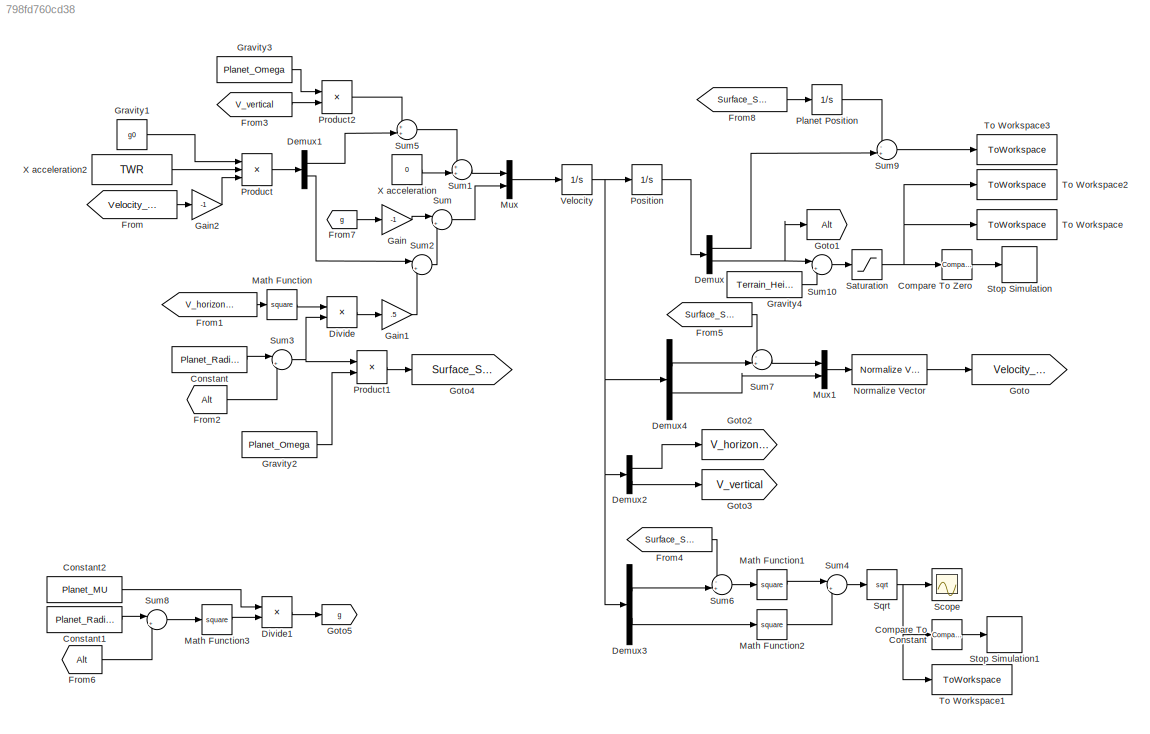
MODEL slx_798fd760cd38
KIND model
CONFIG AbsTol = auto
CONFIG FixedStep = .5
CONFIG MaxStep = auto
CONFIG MinStep = auto
CONFIG RelTol = 1e-5
CONFIG SampleTimeConstraint = Unconstrained
CONFIG Solver = ode45
CONFIG SolverMode = Auto
CONFIG SolverName = ode45
CONFIG StartTime = 0.0
CONFIG StopTime = 10000
BLOCK [Reference] Compare To Constant  REF=simulink/Logic and Bit
Operations/Compare
To Constant
  OutDataTypeStr = boolean
  Ports = [1, 1]
  SourceBlock = simulink/Logic and Bit\nOperations/Compare\nTo Constant
  SourceType = Compare To Constant
  ZeroCross = on
  const = 5
  relop = <=
BLOCK [Reference] Compare To Zero  REF=simulink/Logic and Bit
Operations/Compare
To Zero
  OutDataTypeStr = boolean
  Ports = [1, 1]
  SourceBlock = simulink/Logic and Bit\nOperations/Compare\nTo Zero
  SourceType = Compare To Zero
  ZeroCross = on
  relop = <=
BLOCK [Constant] Constant
  Value = Planet_Radius
BLOCK [Constant] Constant1
  Value = Planet_Radius
BLOCK [Constant] Constant2
  Value = Planet_MU
BLOCK [Demux] Demux
  DisplayOption = bar
  Outputs = 2
  Ports = [1, 2]
BLOCK [Demux] Demux1
  DisplayOption = bar
  Outputs = 2
  Ports = [1, 2]
BLOCK [Demux] Demux2
  DisplayOption = bar
  Outputs = 2
  Ports = [1, 2]
BLOCK [Demux] Demux3
  DisplayOption = bar
  Outputs = 2
  Ports = [1, 2]
BLOCK [Demux] Demux4
  DisplayOption = bar
  Outputs = 2
  Ports = [1, 2]
BLOCK [Product] Divide
  InputSameDT = off
  Inputs = */
  OutDataTypeStr = Inherit: Inherit via internal rule
  Ports = [2, 1]
  RndMeth = Floor
  SaturateOnIntegerOverflow = off
BLOCK [Product] Divide1
  InputSameDT = off
  Inputs = */
  OutDataTypeStr = Inherit: Inherit via internal rule
  Ports = [2, 1]
  RndMeth = Floor
  SaturateOnIntegerOverflow = off
BLOCK [From] From
  GotoTag = Velocity_Vector
BLOCK [From] From1
  GotoTag = V_horizontal
BLOCK [From] From2
  GotoTag = Alt
BLOCK [From] From3
  GotoTag = V_vertical
BLOCK [From] From4
  GotoTag = Surface_Speed
BLOCK [From] From5
  GotoTag = Surface_Speed
BLOCK [From] From6
  GotoTag = Alt
BLOCK [From] From7
  GotoTag = g
BLOCK [From] From8
  GotoTag = Surface_Speed
BLOCK [Gain] Gain
  Gain = -1
  OutDataTypeStr = Inherit: Inherit via internal rule
  ParamDataTypeStr = Inherit: Inherit via internal rule
  SaturateOnIntegerOverflow = off
BLOCK [Gain] Gain1
  Gain = .5
  OutDataTypeStr = Inherit: Inherit via internal rule
  ParamDataTypeStr = Inherit: Inherit via internal rule
  SaturateOnIntegerOverflow = off
BLOCK [Gain] Gain2
  Gain = -1
  OutDataTypeStr = Inherit: Inherit via internal rule
  ParamDataTypeStr = Inherit: Inherit via internal rule
  SaturateOnIntegerOverflow = off
BLOCK [Goto] Goto
  GotoTag = Velocity_Vector
BLOCK [Goto] Goto1
  GotoTag = Alt
BLOCK [Goto] Goto2
  GotoTag = V_horizontal
BLOCK [Goto] Goto3
  GotoTag = V_vertical
BLOCK [Goto] Goto4
  GotoTag = Surface_Speed
BLOCK [Goto] Goto5
  GotoTag = g
BLOCK [Constant] Gravity1
  Value = g0
BLOCK [Constant] Gravity2
  Value = Planet_Omega
BLOCK [Constant] Gravity3
  Value = Planet_Omega
BLOCK [Constant] Gravity4
  Value = Terrain_Height
BLOCK [Math] Math Function
  Operator = square
  Ports = [1, 1]
BLOCK [Math] Math Function1
  Operator = square
  Ports = [1, 1]
BLOCK [Math] Math Function2
  Operator = square
  Ports = [1, 1]
BLOCK [Math] Math Function3
  Operator = square
  Ports = [1, 1]
BLOCK [Mux] Mux
  DisplayOption = bar
  Inputs = 2
  Ports = [2, 1]
BLOCK [Mux] Mux1
  DisplayOption = bar
  Inputs = 2
  Ports = [2, 1]
BLOCK [Reference] Normalize Vector  REF=vrlib/Utilities/Normalize Vector
  Ports = [1, 1]
  SourceBlock = vrlib/Utilities/Normalize Vector
  SourceType = Normalize Vector
  maxzero = 0
BLOCK [Integrator] Planet Position
  Ports = [1, 1]
BLOCK [Integrator] Position
  InitialCondition = [0,Starting_Alt+Terrain_Height]
  Ports = [1, 1]
BLOCK [Product] Product
  InputSameDT = off
  Inputs = 3
  OutDataTypeStr = Inherit: Inherit via internal rule
  Ports = [3, 1]
  RndMeth = Floor
  SaturateOnIntegerOverflow = off
BLOCK [Product] Product1
  InputSameDT = off
  OutDataTypeStr = Inherit: Inherit via internal rule
  Ports = [2, 1]
  RndMeth = Floor
  SaturateOnIntegerOverflow = off
BLOCK [Product] Product2
  InputSameDT = off
  OutDataTypeStr = Inherit: Inherit via internal rule
  Ports = [2, 1]
  RndMeth = Floor
  SaturateOnIntegerOverflow = off
BLOCK [Saturate] Saturation
  InputPortMap = u0
  LowerLimit = 0
  Ports = [1, 1]
  UpperLimit = inf
BLOCK [Scope] Scope
  Floating = off
  NumInputPorts = 1
  Ports = [1]
  YMax = 9.96725e-07
  YMin = 9.96725e-07
BLOCK [Sqrt] Sqrt
BLOCK [Stop] Stop Simulation
BLOCK [Stop] Stop Simulation1
BLOCK [Sum] Sum
  IconShape = round
  InputSameDT = off
  Inputs = |++
  OutDataTypeStr = Inherit: Inherit via internal rule
  Ports = [2, 1]
  SaturateOnIntegerOverflow = off
BLOCK [Sum] Sum1
  IconShape = round
  InputSameDT = off
  Inputs = ++|
  OutDataTypeStr = Inherit: Inherit via internal rule
  Ports = [2, 1]
  SaturateOnIntegerOverflow = off
BLOCK [Sum] Sum10
  IconShape = round
  InputSameDT = off
  Inputs = |+-
  OutDataTypeStr = Inherit: Inherit via internal rule
  Ports = [2, 1]
  SaturateOnIntegerOverflow = off
BLOCK [Sum] Sum2
  IconShape = round
  InputSameDT = off
  Inputs = |++
  OutDataTypeStr = Inherit: Inherit via internal rule
  Ports = [2, 1]
  SaturateOnIntegerOverflow = off
BLOCK [Sum] Sum3
  IconShape = round
  InputSameDT = off
  Inputs = |++
  OutDataTypeStr = Inherit: Inherit via internal rule
  Ports = [2, 1]
  SaturateOnIntegerOverflow = off
BLOCK [Sum] Sum4
  IconShape = round
  InputSameDT = off
  Inputs = |++
  OutDataTypeStr = Inherit: Inherit via internal rule
  Ports = [2, 1]
  SaturateOnIntegerOverflow = off
BLOCK [Sum] Sum5
  IconShape = round
  InputSameDT = off
  Inputs = ++|
  OutDataTypeStr = Inherit: Inherit via internal rule
  Ports = [2, 1]
  SaturateOnIntegerOverflow = off
BLOCK [Sum] Sum6
  IconShape = round
  InputSameDT = off
  Inputs = -+|
  OutDataTypeStr = Inherit: Inherit via internal rule
  Ports = [2, 1]
  SaturateOnIntegerOverflow = off
BLOCK [Sum] Sum7
  IconShape = round
  InputSameDT = off
  Inputs = -+|
  OutDataTypeStr = Inherit: Inherit via internal rule
  Ports = [2, 1]
  SaturateOnIntegerOverflow = off
BLOCK [Sum] Sum8
  IconShape = round
  InputSameDT = off
  Inputs = |++
  OutDataTypeStr = Inherit: Inherit via internal rule
  Ports = [2, 1]
  SaturateOnIntegerOverflow = off
BLOCK [Sum] Sum9
  IconShape = round
  InputSameDT = off
  Inputs = -+|
  OutDataTypeStr = Inherit: Inherit via internal rule
  Ports = [2, 1]
  SaturateOnIntegerOverflow = off
BLOCK [ToWorkspace] To Workspace
  FixptAsFi = on
  MaxDataPoints = 1
  Ports = [1]
  SampleTime = -1
  Save2DSignal = 3-D array (concatenate along third dimension)
  VariableName = Final_Altitude
BLOCK [ToWorkspace] To Workspace1
  FixptAsFi = on
  MaxDataPoints = 1
  Ports = [1]
  SampleTime = -1
  Save2DSignal = 3-D array (concatenate along third dimension)
  VariableName = Final_Speed
BLOCK [ToWorkspace] To Workspace2
  FixptAsFi = on
  Ports = [1]
  SampleTime = -1
  Save2DSignal = 3-D array (concatenate along third dimension)
  VariableName = Y
BLOCK [ToWorkspace] To Workspace3
  FixptAsFi = on
  Ports = [1]
  SampleTime = -1
  Save2DSignal = 3-D array (concatenate along third dimension)
  VariableName = X
BLOCK [Integrator] Velocity
  InitialCondition = [Starting_X_Speed,Starting_Y_Speed]
  Ports = [1, 1]
BLOCK [Constant] X acceleration
  Value = 0
BLOCK [Constant] X acceleration2
  Value = TWR
LINE Compare To Constant:1 -> Stop Simulation1:1
LINE Compare To Zero:1 -> Stop Simulation:1
LINE Constant1:1 -> Sum8:1
LINE Constant2:1 -> Divide1:1
LINE Constant:1 -> Sum3:1
LINE Demux1:1 -> Sum5:2
LINE Demux1:2 -> Sum2:1
LINE Demux2:1 -> Goto2:1
LINE Demux2:2 -> Goto3:1
LINE Demux3:1 -> Sum6:2
LINE Demux3:2 -> Math Function2:1
LINE Demux4:1 -> Sum7:2
LINE Demux4:2 -> Mux1:2
LINE Demux:1 -> Sum9:2
NET Demux:2 -> Goto1:1, Sum10:1
LINE Divide1:1 -> Goto5:1
LINE Divide:1 -> Gain1:1
LINE From1:1 -> Math Function:1
LINE From2:1 -> Sum3:2
LINE From3:1 -> Product2:2
LINE From4:1 -> Sum6:1
LINE From5:1 -> Sum7:1
LINE From6:1 -> Sum8:2
LINE From7:1 -> Gain:1
LINE From8:1 -> Planet Position:1
LINE From:1 -> Gain2:1
LINE Gain1:1 -> Sum2:2
LINE Gain2:1 -> Product:3
LINE Gain:1 -> Sum:1
LINE Gravity1:1 -> Product:1
LINE Gravity2:1 -> Product1:2
LINE Gravity3:1 -> Product2:1
LINE Gravity4:1 -> Sum10:2
LINE Math Function1:1 -> Sum4:1
LINE Math Function2:1 -> Sum4:2
LINE Math Function3:1 -> Divide1:2
LINE Math Function:1 -> Divide:1
LINE Mux1:1 -> Normalize Vector:1
LINE Mux:1 -> Velocity:1
LINE Normalize Vector:1 -> Goto:1
LINE Planet Position:1 -> Sum9:1
LINE Position:1 -> Demux:1
LINE Product1:1 -> Goto4:1
LINE Product2:1 -> Sum5:1
LINE Product:1 -> Demux1:1
NET Saturation:1 -> Compare To Zero:1, To Workspace2:1, To Workspace:1
NET Sqrt:1 -> Compare To Constant:1, Scope:1, To Workspace1:1
LINE Sum10:1 -> Saturation:1
LINE Sum1:1 -> Mux:1
LINE Sum2:1 -> Sum:2
NET Sum3:1 -> Divide:2, Product1:1
LINE Sum4:1 -> Sqrt:1
LINE Sum5:1 -> Sum1:1
LINE Sum6:1 -> Math Function1:1
LINE Sum7:1 -> Mux1:1
LINE Sum8:1 -> Math Function3:1
LINE Sum9:1 -> To Workspace3:1
LINE Sum:1 -> Mux:2
NET Velocity:1 -> Demux2:1, Demux3:1, Demux4:1, Position:1
LINE X acceleration2:1 -> Product:2
LINE X acceleration:1 -> Sum1:2
note: NET lines group one-source signal fan-out (src -> all destinations, sorted); 1:1 wires keep LINE
